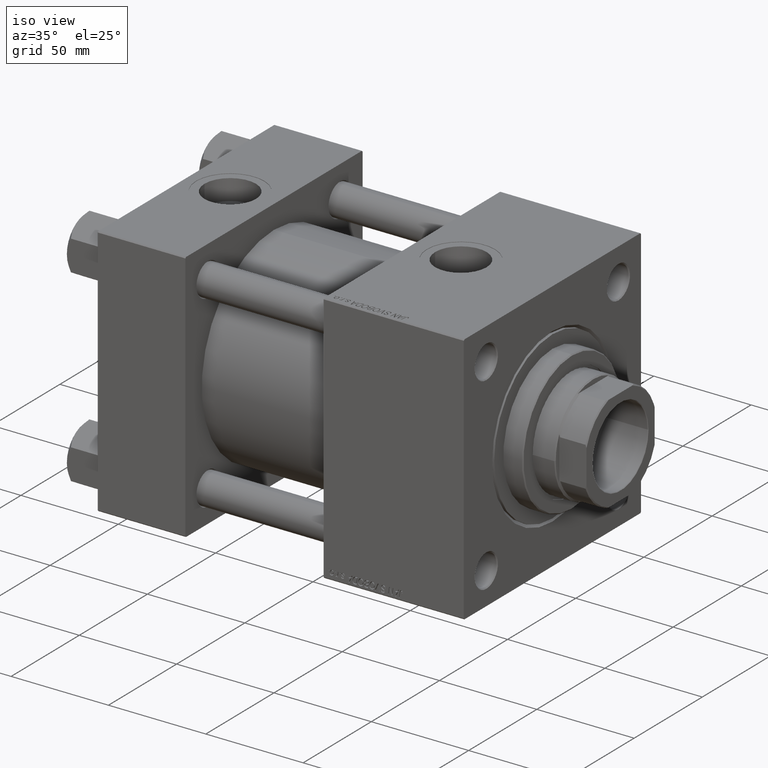
[diagram: clean part render]
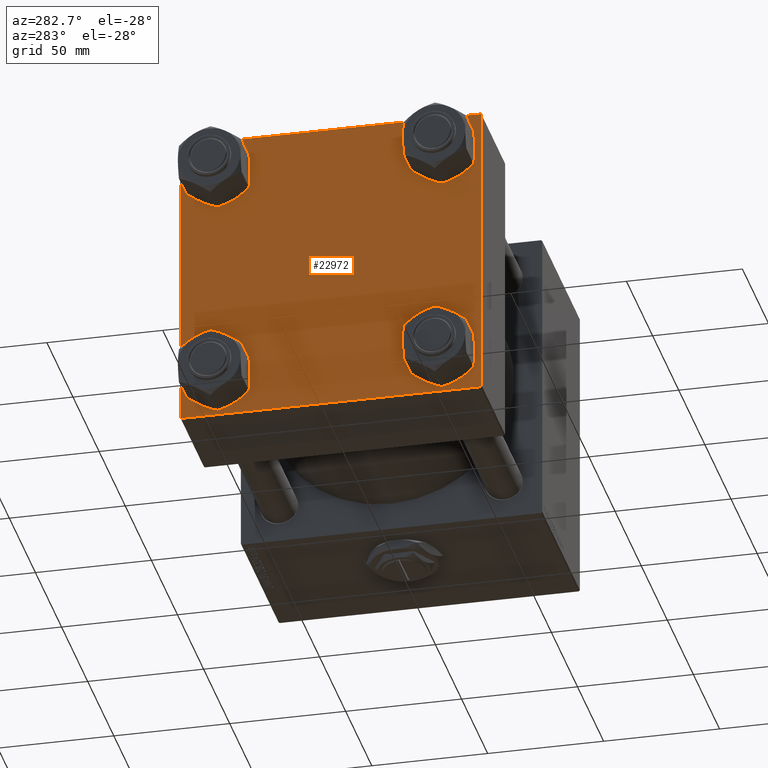
[diagram: tour spotlight — one face highlighted and labeled with its STEP entity id]
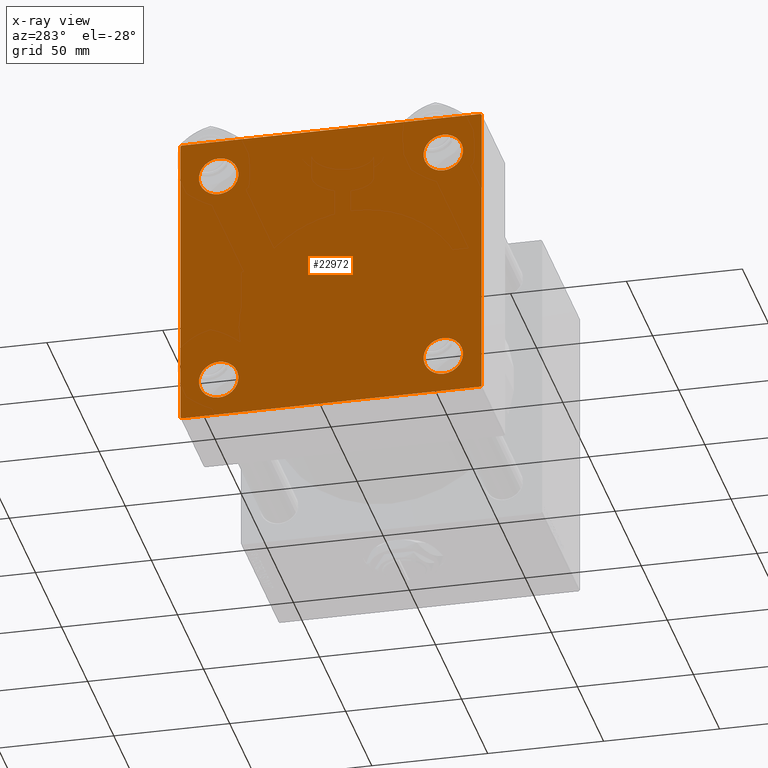
[diagram: x-ray of the same camera — body ghosted, this tour face saturated]
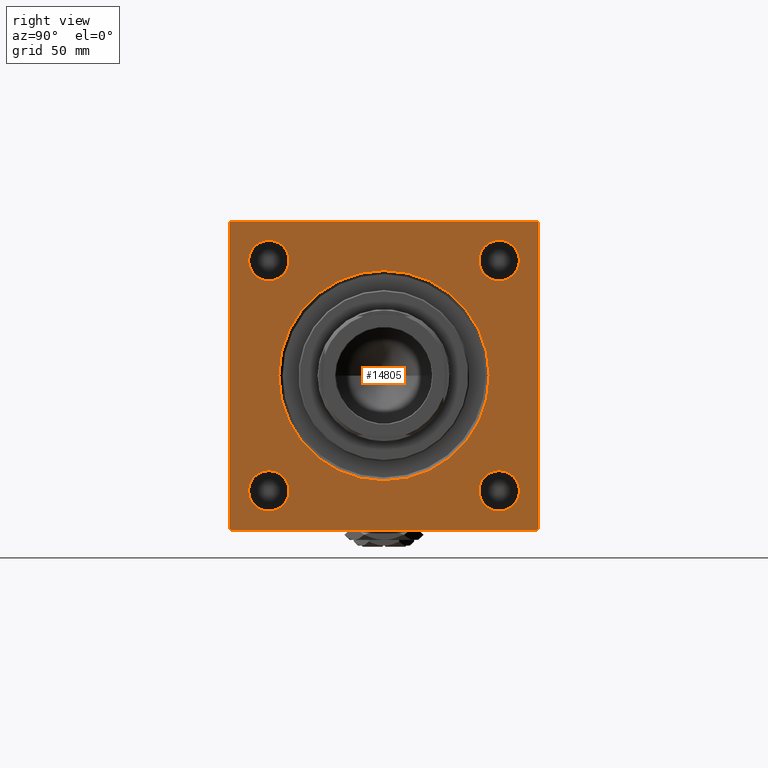
[diagram: tour spotlight — one face highlighted and labeled with its STEP entity id]
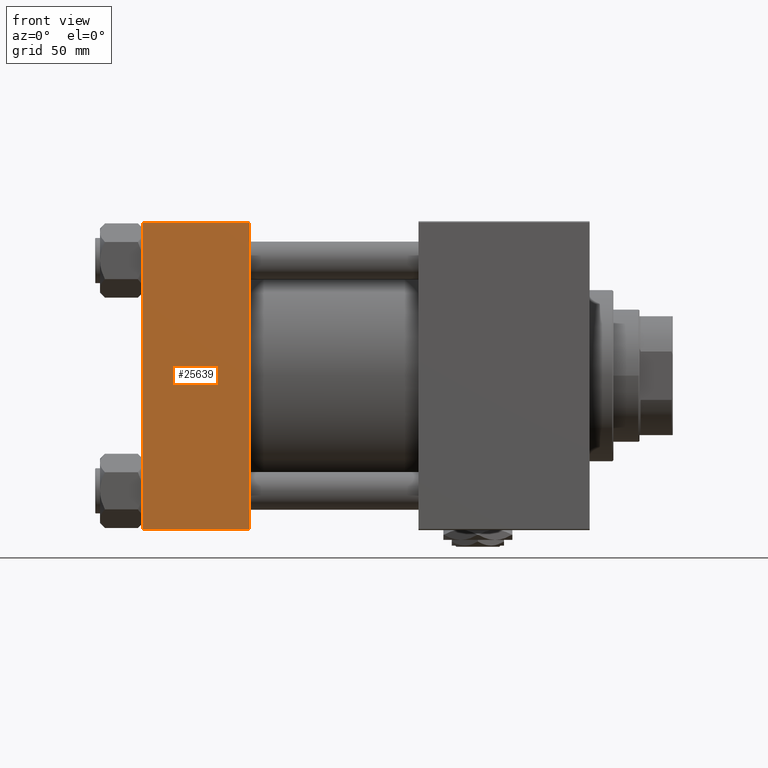
[diagram: tour spotlight — one face highlighted and labeled with its STEP entity id]
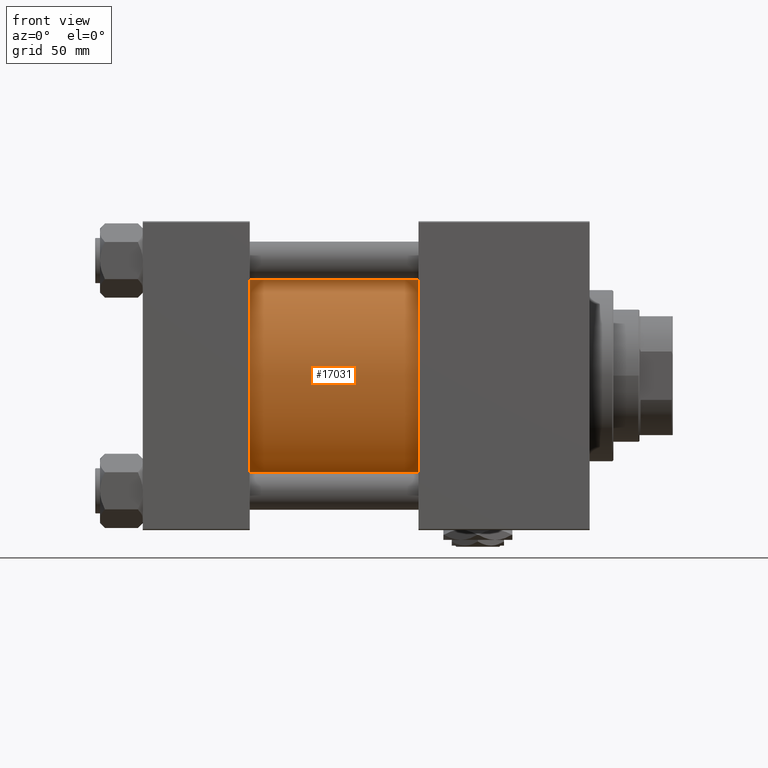
[diagram: tour spotlight — one face highlighted and labeled with its STEP entity id]
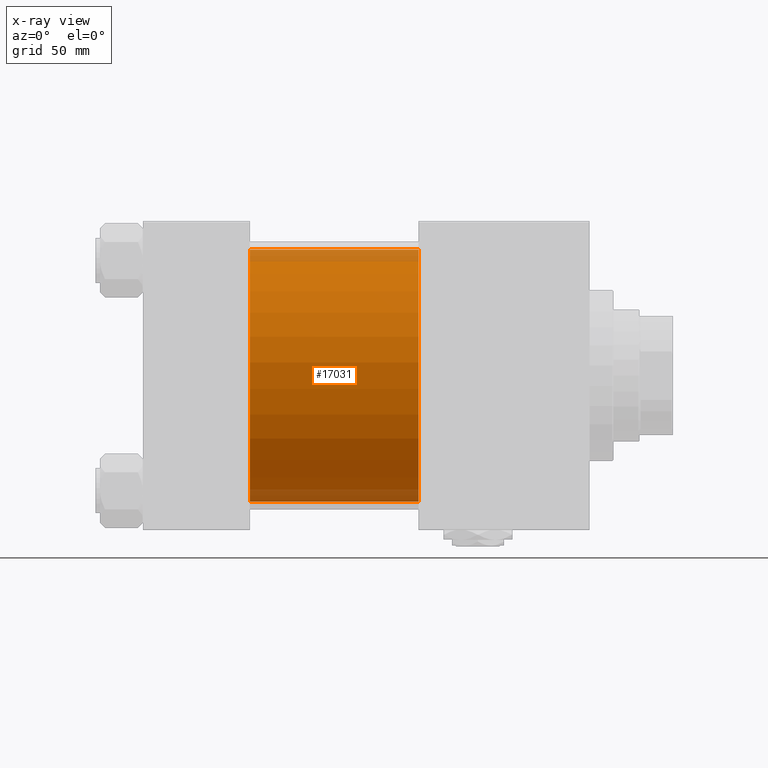
[diagram: x-ray of the same camera — body ghosted, this tour face saturated]
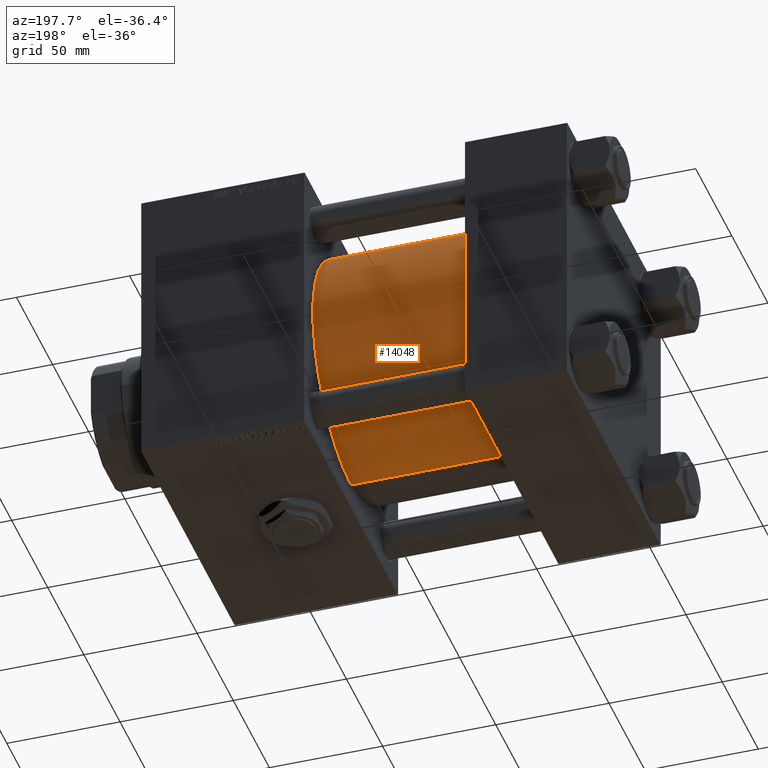
[diagram: tour spotlight — one face highlighted and labeled with its STEP entity id]
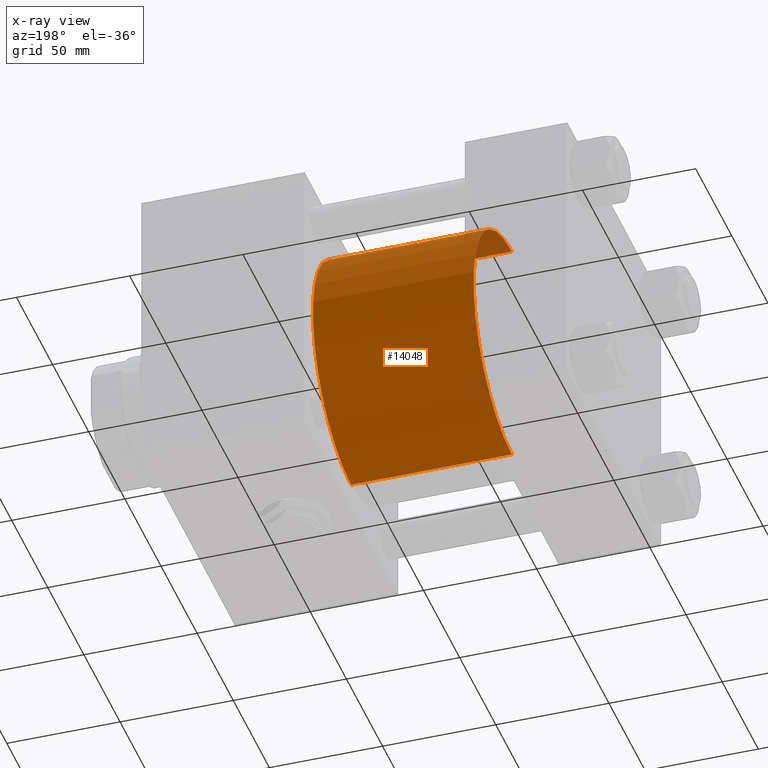
[diagram: x-ray of the same camera — body ghosted, this tour face saturated]
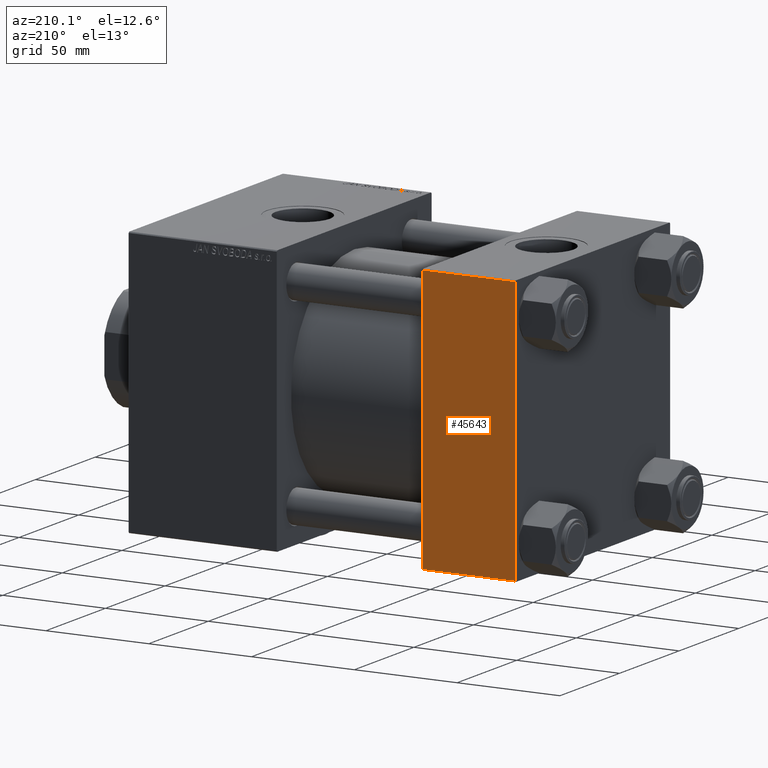
[diagram: tour spotlight — one face highlighted and labeled with its STEP entity id]
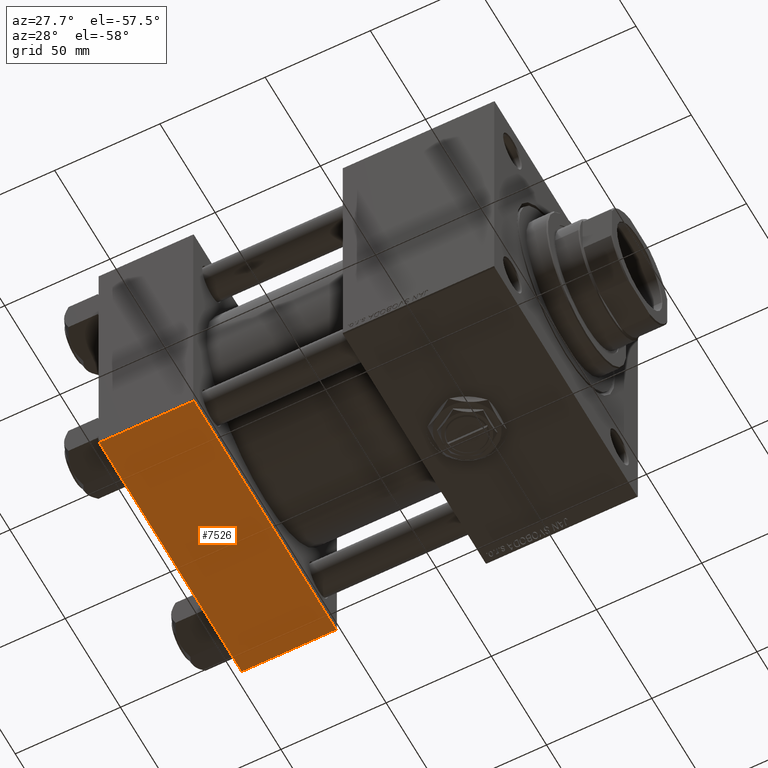
[diagram: tour spotlight — one face highlighted and labeled with its STEP entity id]
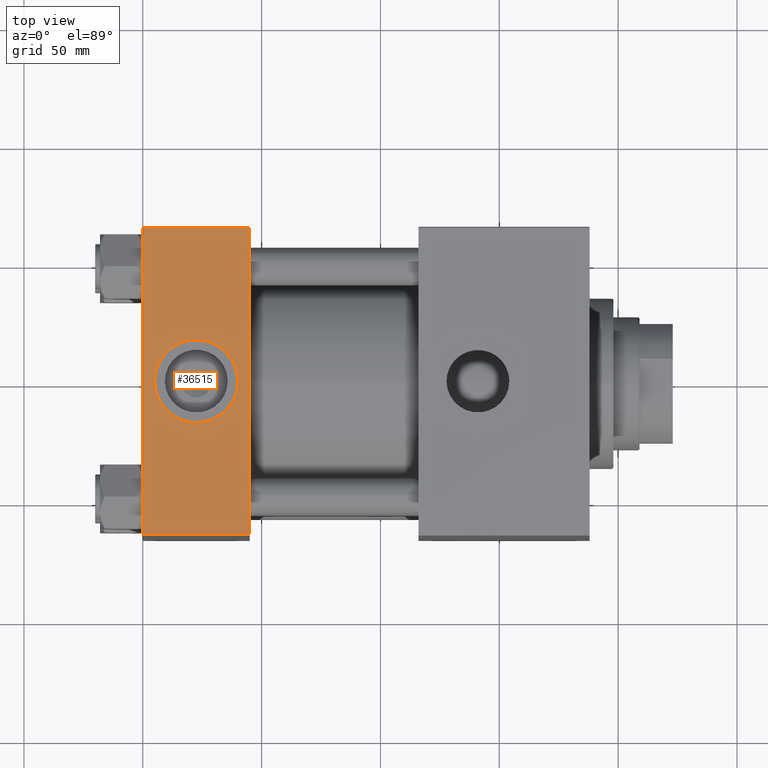
[diagram: tour spotlight — one face highlighted and labeled with its STEP entity id]
A machine part: a face-by-face anatomy tour. The part has 1243 B-rep faces; the first image is the clean iso view, then the 8 largest visible faces are spotlighted one at a time (largest first), each with its STEP entity span.

Face 1 — auxiliary view, entity #22972. An x-ray twin of the same camera follows (body ghosted, this face saturated) — the face is partly hidden behind the body. In plain terms, the highlighted planar face has unit normal (-1, 0, 0).
Definition (entity closure, byte-faithful):
#504 = DIRECTION ( 'NONE',  ( 0.000000000000000000, 0.000000000000000000, 1.000000000000000000 ) ) ;
#526 = AXIS2_PLACEMENT_3D ( 'NONE', #46138, #9826, #32904 ) ;
#538 = EDGE_CURVE ( 'NONE', #18591, #15227, #41202, .T. ) ;
#1169 = FACE_OUTER_BOUND ( 'NONE', #39485, .T. ) ;
#1407 = CIRCLE ( 'NONE', #8163, 8.500000000000007105 ) ;
#2141 = EDGE_CURVE ( 'NONE', #43737, #16187, #39679, .T. ) ;
#2271 = LINE ( 'NONE', #34649, #48018 ) ;
#2372 = EDGE_CURVE ( 'NONE', #24276, #42657, #42554, .T. ) ;
#2485 = AXIS2_PLACEMENT_3D ( 'NONE', #3496, #31116, #39069 ) ;
#2833 = DIRECTION ( 'NONE',  ( 0.000000000000000000, 0.7071067811865474617, -0.7071067811865474617 ) ) ;
#2915 = VECTOR ( 'NONE', #30229, 1000.000000000000000 ) ;
#3126 = LINE ( 'NONE', #27547, #36342 ) ;
#3214 = CARTESIAN_POINT ( 'NONE',  ( 0.000000000000000000, 65.00000000000000000, -64.99999999999998579 ) ) ;
#3496 = CARTESIAN_POINT ( 'NONE',  ( 0.000000000000000000, -48.44999999999999574, -48.45000000000003126 ) ) ;
#4026 = CIRCLE ( 'NONE', #31993, 8.500000000000007105 ) ;
#5039 = CIRCLE ( 'NONE', #2485, 8.500000000000007105 ) ;
#6131 = ORIENTED_EDGE ( 'NONE', *, *, #28336, .T. ) ;
#7970 = DIRECTION ( 'NONE',  ( 0.000000000000000000, 0.000000000000000000, 1.000000000000000000 ) ) ;
#8163 = AXIS2_PLACEMENT_3D ( 'NONE', #44288, #19671, #11970 ) ;
#9111 = AXIS2_PLACEMENT_3D ( 'NONE', #40937, #36962, #37247 ) ;
#9136 = FACE_BOUND ( 'NONE', #33559, .T. ) ;
#9409 = VERTEX_POINT ( 'NONE', #43368 ) ;
#9826 = DIRECTION ( 'NONE',  ( 1.000000000000000000, -0.000000000000000000, 0.000000000000000000 ) ) ;
#10426 = CARTESIAN_POINT ( 'NONE',  ( 0.000000000000000000, 65.00000000000000000, 64.49999999999998579 ) ) ;
#10799 = DIRECTION ( 'NONE',  ( 0.000000000000000000, -0.7071067811865279218, 0.7071067811865671127 ) ) ;
#11970 = DIRECTION ( 'NONE',  ( 0.000000000000000000, 0.000000000000000000, 1.000000000000000000 ) ) ;
#12424 = DIRECTION ( 'NONE',  ( 0.000000000000000000, 0.000000000000000000, 1.000000000000000000 ) ) ;
#13126 = FACE_BOUND ( 'NONE', #35156, .T. ) ;
#13337 = CIRCLE ( 'NONE', #9111, 8.500000000000007105 ) ;
#14064 = LINE ( 'NONE', #41389, #2915 ) ;
#14332 = CARTESIAN_POINT ( 'NONE',  ( 0.000000000000000000, -64.49999999999994316, -65.00000000000000000 ) ) ;
#14613 = VERTEX_POINT ( 'NONE', #43569 ) ;
#15227 = VERTEX_POINT ( 'NONE', #16153 ) ;
#15869 = ORIENTED_EDGE ( 'NONE', *, *, #47072, .F. ) ;
#16153 = CARTESIAN_POINT ( 'NONE',  ( 0.000000000000000000, 48.45000000000000995, -56.95000000000002416 ) ) ;
#16187 = VERTEX_POINT ( 'NONE', #35952 ) ;
#16232 = ORIENTED_EDGE ( 'NONE', *, *, #51817, .T. ) ;
#17402 = DIRECTION ( 'NONE',  ( 0.000000000000000000, 0.000000000000000000, -1.000000000000000000 ) ) ;
#17619 = VERTEX_POINT ( 'NONE', #50238 ) ;
#18246 = EDGE_LOOP ( 'NONE', ( #30526, #45638 ) ) ;
#18591 = VERTEX_POINT ( 'NONE', #39158 ) ;
#19671 = DIRECTION ( 'NONE',  ( 1.000000000000000000, -0.000000000000000000, 0.000000000000000000 ) ) ;
#20022 = ORIENTED_EDGE ( 'NONE', *, *, #28458, .T. ) ;
#20926 = CARTESIAN_POINT ( 'NONE',  ( 0.000000000000000000, -48.44999999999999574, -39.95000000000001705 ) ) ;
#20956 = DIRECTION ( 'NONE',  ( 1.000000000000000000, -0.000000000000000000, 0.000000000000000000 ) ) ;
#21856 = VERTEX_POINT ( 'NONE', #37575 ) ;
#22404 = EDGE_CURVE ( 'NONE', #45590, #33356, #25920, .T. ) ;
#22630 = VECTOR ( 'NONE', #17402, 1000.000000000000000 ) ;
#22972 = ADVANCED_FACE ( 'NONE', ( #49443, #9136, #37779, #13126, #1169 ), #25060, .T. ) ;
#23357 = EDGE_CURVE ( 'NONE', #9409, #43737, #26592, .T. ) ;
#23498 = EDGE_CURVE ( 'NONE', #17619, #14613, #52045, .T. ) ;
#24276 = VERTEX_POINT ( 'NONE', #10426 ) ;
#24931 = ORIENTED_EDGE ( 'NONE', *, *, #34745, .F. ) ;
#25060 = PLANE ( 'NONE',  #45360 ) ;
#25409 = ORIENTED_EDGE ( 'NONE', *, *, #2372, .T. ) ;
#25418 = ORIENTED_EDGE ( 'NONE', *, *, #2141, .T. ) ;
#25560 = CARTESIAN_POINT ( 'NONE',  ( 0.000000000000000000, -64.49999999999997158, 65.00000000000000000 ) ) ;
#25595 = VERTEX_POINT ( 'NONE', #43868 ) ;
#25920 = CIRCLE ( 'NONE', #48753, 8.500000000000007105 ) ;
#26592 = LINE ( 'NONE', #3214, #37769 ) ;
#27547 = CARTESIAN_POINT ( 'NONE',  ( 0.000000000000000000, 65.00000000000000000, 65.00000000000001421 ) ) ;
#27634 = DIRECTION ( 'NONE',  ( 0.000000000000000000, -1.000000000000000000, -1.067522139062650425E-16 ) ) ;
#28336 = EDGE_CURVE ( 'NONE', #14613, #17619, #1407, .T. ) ;
#28458 = EDGE_CURVE ( 'NONE', #33356, #45590, #48825, .T. ) ;
#29812 = CARTESIAN_POINT ( 'NONE',  ( 0.000000000000000000, 48.45000000000000995, 56.95000000000002416 ) ) ;
#29855 = CARTESIAN_POINT ( 'NONE',  ( 0.000000000000000000, 64.74999999999997158, -64.74999999999997158 ) ) ;
#30104 = LINE ( 'NONE', #29855, #38716 ) ;
#30229 = DIRECTION ( 'NONE',  ( -0.000000000000000000, 0.7071067811865672237, 0.7071067811865279218 ) ) ;
#30526 = ORIENTED_EDGE ( 'NONE', *, *, #538, .T. ) ;
#30645 = EDGE_CURVE ( 'NONE', #15227, #18591, #4026, .T. ) ;
#31116 = DIRECTION ( 'NONE',  ( 1.000000000000000000, -0.000000000000000000, 0.000000000000000000 ) ) ;
#31349 = DIRECTION ( 'NONE',  ( 1.000000000000000000, -0.000000000000000000, 0.000000000000000000 ) ) ;
#31466 = CARTESIAN_POINT ( 'NONE',  ( 0.000000000000000000, -64.75000000000176215, -64.74999999999816680 ) ) ;
#31612 = ORIENTED_EDGE ( 'NONE', *, *, #23498, .T. ) ;
#31749 = LINE ( 'NONE', #47912, #44666 ) ;
#31993 = AXIS2_PLACEMENT_3D ( 'NONE', #50542, #42075, #33343 ) ;
#32229 = ORIENTED_EDGE ( 'NONE', *, *, #23357, .T. ) ;
#32904 = DIRECTION ( 'NONE',  ( 0.000000000000000000, 0.000000000000000000, 1.000000000000000000 ) ) ;
#33343 = DIRECTION ( 'NONE',  ( 0.000000000000000000, 0.000000000000000000, 1.000000000000000000 ) ) ;
#33356 = VERTEX_POINT ( 'NONE', #29812 ) ;
#33559 = EDGE_LOOP ( 'NONE', ( #36839, #35777 ) ) ;
#34649 = CARTESIAN_POINT ( 'NONE',  ( 0.000000000000000000, -65.00000000000000000, 65.00000000000000000 ) ) ;
#34745 = EDGE_CURVE ( 'NONE', #21856, #43350, #3126, .T. ) ;
#35156 = EDGE_LOOP ( 'NONE', ( #20022, #49294 ) ) ;
#35777 = ORIENTED_EDGE ( 'NONE', *, *, #38872, .T. ) ;
#35952 = CARTESIAN_POINT ( 'NONE',  ( 0.000000000000000000, -65.00000000000000000, -64.49999999999991473 ) ) ;
#36150 = CARTESIAN_POINT ( 'NONE',  ( 0.000000000000000000, -65.00000000000000000, 64.50000000000000000 ) ) ;
#36342 = VECTOR ( 'NONE', #47686, 1000.000000000000000 ) ;
#36369 = DIRECTION ( 'NONE',  ( 1.000000000000000000, -0.000000000000000000, 0.000000000000000000 ) ) ;
#36769 = ORIENTED_EDGE ( 'NONE', *, *, #40879, .T. ) ;
#36839 = ORIENTED_EDGE ( 'NONE', *, *, #51013, .T. ) ;
#36962 = DIRECTION ( 'NONE',  ( 1.000000000000000000, -0.000000000000000000, 0.000000000000000000 ) ) ;
#37247 = DIRECTION ( 'NONE',  ( 0.000000000000000000, 0.000000000000000000, 1.000000000000000000 ) ) ;
#37575 = CARTESIAN_POINT ( 'NONE',  ( 0.000000000000000000, 64.49999999999997158, 65.00000000000001421 ) ) ;
#37769 = VECTOR ( 'NONE', #27634, 1000.000000000000000 ) ;
#37779 = FACE_BOUND ( 'NONE', #18246, .T. ) ;
#37849 = AXIS2_PLACEMENT_3D ( 'NONE', #51485, #31349, #12424 ) ;
#38320 = CARTESIAN_POINT ( 'NONE',  ( 0.000000000000000000, 65.00000000000000000, 65.00000000000001421 ) ) ;
#38340 = EDGE_LOOP ( 'NONE', ( #6131, #31612 ) ) ;
#38716 = VECTOR ( 'NONE', #46267, 1000.000000000000114 ) ;
#38872 = EDGE_CURVE ( 'NONE', #25595, #41923, #5039, .T. ) ;
#39069 = DIRECTION ( 'NONE',  ( 0.000000000000000000, 0.000000000000000000, 1.000000000000000000 ) ) ;
#39158 = CARTESIAN_POINT ( 'NONE',  ( 0.000000000000000000, 48.45000000000000995, -39.95000000000000284 ) ) ;
#39485 = EDGE_LOOP ( 'NONE', ( #25409, #43520, #32229, #25418, #15869, #36769, #24931, #16232 ) ) ;
#39679 = LINE ( 'NONE', #31466, #48838 ) ;
#40036 = CARTESIAN_POINT ( 'NONE',  ( 0.000000000000000000, 48.45000000000000995, 48.45000000000001705 ) ) ;
#40334 = CARTESIAN_POINT ( 'NONE',  ( 0.000000000000000000, -48.44999999999999574, 48.45000000000003126 ) ) ;
#40879 = EDGE_CURVE ( 'NONE', #44352, #43350, #14064, .T. ) ;
#40937 = CARTESIAN_POINT ( 'NONE',  ( 0.000000000000000000, -48.44999999999999574, -48.45000000000003126 ) ) ;
#40954 = DIRECTION ( 'NONE',  ( -0.000000000000000000, 0.000000000000000000, 1.000000000000000000 ) ) ;
#41202 = CIRCLE ( 'NONE', #37849, 8.500000000000007105 ) ;
#41389 = CARTESIAN_POINT ( 'NONE',  ( -0.000000000000000000, -64.74999999999819522, 64.75000000000179057 ) ) ;
#41755 = DIRECTION ( 'NONE',  ( -1.000000000000000000, 0.000000000000000000, -0.000000000000000000 ) ) ;
#41923 = VERTEX_POINT ( 'NONE', #20926 ) ;
#42075 = DIRECTION ( 'NONE',  ( 1.000000000000000000, -0.000000000000000000, 0.000000000000000000 ) ) ;
#42554 = LINE ( 'NONE', #38320, #22630 ) ;
#42657 = VERTEX_POINT ( 'NONE', #48005 ) ;
#43350 = VERTEX_POINT ( 'NONE', #25560 ) ;
#43368 = CARTESIAN_POINT ( 'NONE',  ( 0.000000000000000000, 64.49999999999997158, -64.99999999999998579 ) ) ;
#43520 = ORIENTED_EDGE ( 'NONE', *, *, #50312, .T. ) ;
#43569 = CARTESIAN_POINT ( 'NONE',  ( 0.000000000000000000, -48.44999999999999574, 56.95000000000003837 ) ) ;
#43737 = VERTEX_POINT ( 'NONE', #14332 ) ;
#43868 = CARTESIAN_POINT ( 'NONE',  ( 0.000000000000000000, -48.44999999999999574, -56.95000000000003837 ) ) ;
#44288 = CARTESIAN_POINT ( 'NONE',  ( 0.000000000000000000, -48.44999999999999574, 48.45000000000003126 ) ) ;
#44352 = VERTEX_POINT ( 'NONE', #36150 ) ;
#44666 = VECTOR ( 'NONE', #2833, 1000.000000000000114 ) ;
#45271 = AXIS2_PLACEMENT_3D ( 'NONE', #40334, #36369, #7970 ) ;
#45360 = AXIS2_PLACEMENT_3D ( 'NONE', #45729, #41755, #40954 ) ;
#45590 = VERTEX_POINT ( 'NONE', #51728 ) ;
#45638 = ORIENTED_EDGE ( 'NONE', *, *, #30645, .T. ) ;
#45729 = CARTESIAN_POINT ( 'NONE',  ( 0.000000000000000000, 0.000000000000000000, 0.000000000000000000 ) ) ;
#46138 = CARTESIAN_POINT ( 'NONE',  ( 0.000000000000000000, 48.45000000000000995, 48.45000000000001705 ) ) ;
#46267 = DIRECTION ( 'NONE',  ( -0.000000000000000000, -0.7071067811865474617, -0.7071067811865474617 ) ) ;
#46835 = DIRECTION ( 'NONE',  ( 0.000000000000000000, 0.000000000000000000, -1.000000000000000000 ) ) ;
#47072 = EDGE_CURVE ( 'NONE', #44352, #16187, #2271, .T. ) ;
#47686 = DIRECTION ( 'NONE',  ( 0.000000000000000000, -1.000000000000000000, -1.067522139062650425E-16 ) ) ;
#47912 = CARTESIAN_POINT ( 'NONE',  ( 0.000000000000000000, 64.74999999999998579, 64.74999999999998579 ) ) ;
#48005 = CARTESIAN_POINT ( 'NONE',  ( 0.000000000000000000, 65.00000000000000000, -64.49999999999995737 ) ) ;
#48018 = VECTOR ( 'NONE', #46835, 1000.000000000000000 ) ;
#48753 = AXIS2_PLACEMENT_3D ( 'NONE', #40036, #20956, #504 ) ;
#48825 = CIRCLE ( 'NONE', #526, 8.500000000000007105 ) ;
#48838 = VECTOR ( 'NONE', #10799, 1000.000000000000000 ) ;
#49294 = ORIENTED_EDGE ( 'NONE', *, *, #22404, .T. ) ;
#49443 = FACE_BOUND ( 'NONE', #38340, .T. ) ;
#50238 = CARTESIAN_POINT ( 'NONE',  ( 0.000000000000000000, -48.44999999999999574, 39.95000000000001705 ) ) ;
#50312 = EDGE_CURVE ( 'NONE', #42657, #9409, #30104, .T. ) ;
#50542 = CARTESIAN_POINT ( 'NONE',  ( 0.000000000000000000, 48.45000000000000995, -48.45000000000001705 ) ) ;
#51013 = EDGE_CURVE ( 'NONE', #41923, #25595, #13337, .T. ) ;
#51485 = CARTESIAN_POINT ( 'NONE',  ( 0.000000000000000000, 48.45000000000000995, -48.45000000000001705 ) ) ;
#51728 = CARTESIAN_POINT ( 'NONE',  ( 0.000000000000000000, 48.45000000000000995, 39.95000000000000284 ) ) ;
#51817 = EDGE_CURVE ( 'NONE', #21856, #24276, #31749, .T. ) ;
#52045 = CIRCLE ( 'NONE', #45271, 8.500000000000007105 ) ;

Face 2 — right view, entity #14805. In plain terms, the highlighted planar face has unit normal (-1, 0, 0).
Definition (entity closure, byte-faithful):
#56 = DIRECTION ( 'NONE',  ( 0.000000000000000000, 0.000000000000000000, -1.000000000000000000 ) ) ;
#653 = VERTEX_POINT ( 'NONE', #21700 ) ;
#997 = AXIS2_PLACEMENT_3D ( 'NONE', #20749, #52293, #49116 ) ;
#1081 = AXIS2_PLACEMENT_3D ( 'NONE', #17591, #22587, #30029 ) ;
#1440 = CARTESIAN_POINT ( 'NONE',  ( 188.0000000000000000, -64.99999999999998579, 65.00000000000000000 ) ) ;
#1705 = CARTESIAN_POINT ( 'NONE',  ( 188.0000000000000000, -64.99999999999998579, 64.50000000000008527 ) ) ;
#1803 = VECTOR ( 'NONE', #40415, 1000.000000000000000 ) ;
#1990 = CARTESIAN_POINT ( 'NONE',  ( 188.0000000000000000, 65.00000000000002842, -64.50000000000001421 ) ) ;
#2197 = AXIS2_PLACEMENT_3D ( 'NONE', #37372, #13510, #24903 ) ;
#2883 = DIRECTION ( 'NONE',  ( 0.000000000000000000, 0.000000000000000000, 1.000000000000000000 ) ) ;
#3027 = CARTESIAN_POINT ( 'NONE',  ( 188.0000000000000000, 0.000000000000000000, -44.24999999999998579 ) ) ;
#3563 = EDGE_LOOP ( 'NONE', ( #50070, #4885 ) ) ;
#3804 = CARTESIAN_POINT ( 'NONE',  ( 188.0000000000000000, -64.50000000000002842, -65.00000000000001421 ) ) ;
#3893 = CARTESIAN_POINT ( 'NONE',  ( 188.0000000000000000, 64.50000000000005684, 65.00000000000001421 ) ) ;
#4494 = CARTESIAN_POINT ( 'NONE',  ( 188.0000000000000000, 48.45000000000000995, 48.45000000000001705 ) ) ;
#4702 = VERTEX_POINT ( 'NONE', #24753 ) ;
#4885 = ORIENTED_EDGE ( 'NONE', *, *, #18775, .T. ) ;
#5162 = LINE ( 'NONE', #1440, #27397 ) ;
#5240 = CARTESIAN_POINT ( 'NONE',  ( 188.0000000000000000, 65.00000000000002842, -64.99999999999998579 ) ) ;
#6749 = LINE ( 'NONE', #47054, #20785 ) ;
#7220 = ORIENTED_EDGE ( 'NONE', *, *, #17722, .F. ) ;
#7411 = CARTESIAN_POINT ( 'NONE',  ( 188.0000000000000000, -64.99999999999998579, -64.50000000000002842 ) ) ;
#8581 = LINE ( 'NONE', #3804, #1803 ) ;
#8762 = ORIENTED_EDGE ( 'NONE', *, *, #42339, .T. ) ;
#9156 = CIRCLE ( 'NONE', #38794, 44.24999999999998579 ) ;
#9286 = EDGE_CURVE ( 'NONE', #4702, #653, #29558, .T. ) ;
#9681 = CIRCLE ( 'NONE', #39306, 44.24999999999998579 ) ;
#9853 = AXIS2_PLACEMENT_3D ( 'NONE', #46413, #26282, #2883 ) ;
#10036 = CARTESIAN_POINT ( 'NONE',  ( 188.0000000000000000, 48.45000000000000995, -39.95000000000008811 ) ) ;
#10397 = FACE_BOUND ( 'NONE', #26528, .T. ) ;
#10454 = CARTESIAN_POINT ( 'NONE',  ( 188.0000000000000000, 65.00000000000002842, -64.50000000000001421 ) ) ;
#11632 = CARTESIAN_POINT ( 'NONE',  ( 188.0000000000000000, 0.000000000000000000, 0.000000000000000000 ) ) ;
#12035 = ORIENTED_EDGE ( 'NONE', *, *, #13767, .T. ) ;
#12390 = VECTOR ( 'NONE', #50490, 999.9999999999998863 ) ;
#12470 = EDGE_CURVE ( 'NONE', #29446, #36134, #8581, .T. ) ;
#12573 = CARTESIAN_POINT ( 'NONE',  ( 188.0000000000000000, -64.50000000000008527, 65.00000000000000000 ) ) ;
#12876 = DIRECTION ( 'NONE',  ( -1.000000000000000000, 0.000000000000000000, -0.000000000000000000 ) ) ;
#13510 = DIRECTION ( 'NONE',  ( -1.000000000000000000, 0.000000000000000000, -0.000000000000000000 ) ) ;
#13767 = EDGE_CURVE ( 'NONE', #23477, #17051, #23025, .T. ) ;
#14750 = DIRECTION ( 'NONE',  ( -1.000000000000000000, 0.000000000000000000, -0.000000000000000000 ) ) ;
#14801 = CARTESIAN_POINT ( 'NONE',  ( 188.0000000000000000, 48.45000000000000995, 48.45000000000001705 ) ) ;
#14805 = ADVANCED_FACE ( 'NONE', ( #42997, #46966, #10397, #18107, #26320, #21822 ), #37990, .F. ) ;
#15366 = VERTEX_POINT ( 'NONE', #31464 ) ;
#15803 = VERTEX_POINT ( 'NONE', #16474 ) ;
#15939 = CIRCLE ( 'NONE', #48098, 8.499999999999923617 ) ;
#16116 = CIRCLE ( 'NONE', #48260, 8.499999999999923617 ) ;
#16461 = DIRECTION ( 'NONE',  ( 0.000000000000000000, 0.000000000000000000, 1.000000000000000000 ) ) ;
#16474 = CARTESIAN_POINT ( 'NONE',  ( 188.0000000000000000, -64.99999999999998579, 64.50000000000008527 ) ) ;
#16583 = DIRECTION ( 'NONE',  ( -1.000000000000000000, 0.000000000000000000, -0.000000000000000000 ) ) ;
#17051 = VERTEX_POINT ( 'NONE', #10036 ) ;
#17394 = ORIENTED_EDGE ( 'NONE', *, *, #17503, .T. ) ;
#17503 = EDGE_CURVE ( 'NONE', #15366, #36717, #39268, .T. ) ;
#17569 = EDGE_CURVE ( 'NONE', #15803, #29446, #5162, .T. ) ;
#17586 = VECTOR ( 'NONE', #32811, 1000.000000000000000 ) ;
#17591 = CARTESIAN_POINT ( 'NONE',  ( 188.0000000000000000, 0.000000000000000000, 0.000000000000000000 ) ) ;
#17722 = EDGE_CURVE ( 'NONE', #32064, #45968, #50758, .T. ) ;
#18107 = FACE_BOUND ( 'NONE', #35072, .T. ) ;
#18380 = DIRECTION ( 'NONE',  ( -1.000000000000000000, 0.000000000000000000, -0.000000000000000000 ) ) ;
#18775 = EDGE_CURVE ( 'NONE', #19920, #25490, #9681, .T. ) ;
#19821 = CARTESIAN_POINT ( 'NONE',  ( 188.0000000000000000, 64.50000000000002842, -64.99999999999998579 ) ) ;
#19920 = VERTEX_POINT ( 'NONE', #46015 ) ;
#20019 = CIRCLE ( 'NONE', #9853, 8.499999999999923617 ) ;
#20749 = CARTESIAN_POINT ( 'NONE',  ( 188.0000000000000000, 48.45000000000000995, -48.45000000000001705 ) ) ;
#20785 = VECTOR ( 'NONE', #22962, 1000.000000000000000 ) ;
#20915 = LINE ( 'NONE', #5240, #22638 ) ;
#21101 = CARTESIAN_POINT ( 'NONE',  ( 188.0000000000000000, -48.45000000000001705, -48.45000000000001705 ) ) ;
#21368 = DIRECTION ( 'NONE',  ( 0.000000000000000000, 0.000000000000000000, -1.000000000000000000 ) ) ;
#21447 = DIRECTION ( 'NONE',  ( 0.000000000000000000, -1.000000000000000000, -2.135044278125300850E-16 ) ) ;
#21700 = CARTESIAN_POINT ( 'NONE',  ( 188.0000000000000000, -48.45000000000001705, -56.94999999999993889 ) ) ;
#21822 = FACE_OUTER_BOUND ( 'NONE', #23641, .T. ) ;
#22343 = CARTESIAN_POINT ( 'NONE',  ( 188.0000000000000000, 0.000000000000000000, 0.000000000000000000 ) ) ;
#22587 = DIRECTION ( 'NONE',  ( -1.000000000000000000, 0.000000000000000000, -0.000000000000000000 ) ) ;
#22638 = VECTOR ( 'NONE', #21447, 1000.000000000000000 ) ;
#22962 = DIRECTION ( 'NONE',  ( 0.000000000000000000, -0.7071067811865279218, 0.7071067811865671127 ) ) ;
#23025 = CIRCLE ( 'NONE', #997, 8.499999999999923617 ) ;
#23477 = VERTEX_POINT ( 'NONE', #32384 ) ;
#23641 = EDGE_LOOP ( 'NONE', ( #25533, #28777, #30865, #37187, #7220, #8762, #34313, #40178 ) ) ;
#24100 = EDGE_CURVE ( 'NONE', #36587, #40115, #44426, .T. ) ;
#24753 = CARTESIAN_POINT ( 'NONE',  ( 188.0000000000000000, -48.45000000000001705, -39.95000000000008811 ) ) ;
#24903 = DIRECTION ( 'NONE',  ( 0.000000000000000000, 0.000000000000000000, 1.000000000000000000 ) ) ;
#25105 = CIRCLE ( 'NONE', #2197, 8.499999999999923617 ) ;
#25341 = VERTEX_POINT ( 'NONE', #19821 ) ;
#25490 = VERTEX_POINT ( 'NONE', #3027 ) ;
#25518 = CARTESIAN_POINT ( 'NONE',  ( 188.0000000000000000, -48.44999999999998153, 56.94999999999991047 ) ) ;
#25533 = ORIENTED_EDGE ( 'NONE', *, *, #17569, .T. ) ;
#26115 = DIRECTION ( 'NONE',  ( 0.000000000000000000, 0.000000000000000000, 1.000000000000000000 ) ) ;
#26282 = DIRECTION ( 'NONE',  ( -1.000000000000000000, 0.000000000000000000, -0.000000000000000000 ) ) ;
#26320 = FACE_BOUND ( 'NONE', #3563, .T. ) ;
#26420 = CARTESIAN_POINT ( 'NONE',  ( 188.0000000000000000, -48.45000000000001705, -48.45000000000001705 ) ) ;
#26528 = EDGE_LOOP ( 'NONE', ( #28860, #36903 ) ) ;
#26746 = EDGE_CURVE ( 'NONE', #36377, #15803, #46245, .T. ) ;
#27287 = EDGE_LOOP ( 'NONE', ( #17394, #35982 ) ) ;
#27397 = VECTOR ( 'NONE', #21368, 1000.000000000000000 ) ;
#28056 = CARTESIAN_POINT ( 'NONE',  ( 188.0000000000000000, 65.00000000000002842, 65.00000000000001421 ) ) ;
#28777 = ORIENTED_EDGE ( 'NONE', *, *, #12470, .T. ) ;
#28860 = ORIENTED_EDGE ( 'NONE', *, *, #48322, .T. ) ;
#29446 = VERTEX_POINT ( 'NONE', #7411 ) ;
#29558 = CIRCLE ( 'NONE', #33805, 8.499999999999923617 ) ;
#29908 = EDGE_CURVE ( 'NONE', #25341, #45968, #43367, .T. ) ;
#29937 = AXIS2_PLACEMENT_3D ( 'NONE', #37530, #16583, #33286 ) ;
#30029 = DIRECTION ( 'NONE',  ( -0.000000000000000000, 0.000000000000000000, 1.000000000000000000 ) ) ;
#30263 = VECTOR ( 'NONE', #34630, 1000.000000000000000 ) ;
#30819 = DIRECTION ( 'NONE',  ( 0.000000000000000000, 0.000000000000000000, 1.000000000000000000 ) ) ;
#30865 = ORIENTED_EDGE ( 'NONE', *, *, #49838, .F. ) ;
#31464 = CARTESIAN_POINT ( 'NONE',  ( 188.0000000000000000, -48.44999999999998153, 39.95000000000005969 ) ) ;
#32064 = VERTEX_POINT ( 'NONE', #40010 ) ;
#32384 = CARTESIAN_POINT ( 'NONE',  ( 188.0000000000000000, 48.45000000000000995, -56.94999999999993889 ) ) ;
#32811 = DIRECTION ( 'NONE',  ( 0.000000000000000000, -1.000000000000000000, -1.067522139062650425E-16 ) ) ;
#33286 = DIRECTION ( 'NONE',  ( 0.000000000000000000, 0.000000000000000000, 1.000000000000000000 ) ) ;
#33454 = CARTESIAN_POINT ( 'NONE',  ( 188.0000000000000000, 48.45000000000000995, 39.95000000000008811 ) ) ;
#33805 = AXIS2_PLACEMENT_3D ( 'NONE', #26420, #14750, #34358 ) ;
#34072 = CARTESIAN_POINT ( 'NONE',  ( 188.0000000000000000, 65.00000000000002842, 65.00000000000001421 ) ) ;
#34313 = ORIENTED_EDGE ( 'NONE', *, *, #46775, .T. ) ;
#34358 = DIRECTION ( 'NONE',  ( 0.000000000000000000, 0.000000000000000000, 1.000000000000000000 ) ) ;
#34630 = DIRECTION ( 'NONE',  ( -0.000000000000000000, 0.7071067811865671127, 0.7071067811865279218 ) ) ;
#35072 = EDGE_LOOP ( 'NONE', ( #12035, #51380 ) ) ;
#35982 = ORIENTED_EDGE ( 'NONE', *, *, #44765, .T. ) ;
#36134 = VERTEX_POINT ( 'NONE', #52071 ) ;
#36377 = VERTEX_POINT ( 'NONE', #12573 ) ;
#36587 = VERTEX_POINT ( 'NONE', #33454 ) ;
#36717 = VERTEX_POINT ( 'NONE', #25518 ) ;
#36903 = ORIENTED_EDGE ( 'NONE', *, *, #9286, .T. ) ;
#37187 = ORIENTED_EDGE ( 'NONE', *, *, #29908, .T. ) ;
#37372 = CARTESIAN_POINT ( 'NONE',  ( 188.0000000000000000, -48.44999999999998153, 48.44999999999998863 ) ) ;
#37530 = CARTESIAN_POINT ( 'NONE',  ( 188.0000000000000000, -48.44999999999998153, 48.44999999999998863 ) ) ;
#37990 = PLANE ( 'NONE',  #1081 ) ;
#38746 = EDGE_LOOP ( 'NONE', ( #46051, #51881 ) ) ;
#38794 = AXIS2_PLACEMENT_3D ( 'NONE', #11632, #39993, #52186 ) ;
#39177 = DIRECTION ( 'NONE',  ( 0.000000000000000000, 0.000000000000000000, 1.000000000000000000 ) ) ;
#39268 = CIRCLE ( 'NONE', #29937, 8.499999999999923617 ) ;
#39306 = AXIS2_PLACEMENT_3D ( 'NONE', #22343, #18380, #30819 ) ;
#39720 = EDGE_CURVE ( 'NONE', #40115, #36587, #16116, .T. ) ;
#39993 = DIRECTION ( 'NONE',  ( -1.000000000000000000, 0.000000000000000000, -0.000000000000000000 ) ) ;
#40010 = CARTESIAN_POINT ( 'NONE',  ( 188.0000000000000000, 65.00000000000002842, 64.50000000000001421 ) ) ;
#40115 = VERTEX_POINT ( 'NONE', #50367 ) ;
#40178 = ORIENTED_EDGE ( 'NONE', *, *, #26746, .T. ) ;
#40415 = DIRECTION ( 'NONE',  ( 0.000000000000000000, 0.7071067811865279218, -0.7071067811865672237 ) ) ;
#40932 = VECTOR ( 'NONE', #56, 1000.000000000000000 ) ;
#42339 = EDGE_CURVE ( 'NONE', #32064, #46814, #6749, .T. ) ;
#42390 = DIRECTION ( 'NONE',  ( -1.000000000000000000, 0.000000000000000000, -0.000000000000000000 ) ) ;
#42997 = FACE_BOUND ( 'NONE', #38746, .T. ) ;
#43367 = LINE ( 'NONE', #1990, #30263 ) ;
#44426 = CIRCLE ( 'NONE', #49529, 8.499999999999923617 ) ;
#44448 = EDGE_CURVE ( 'NONE', #17051, #23477, #20019, .T. ) ;
#44765 = EDGE_CURVE ( 'NONE', #36717, #15366, #25105, .T. ) ;
#45968 = VERTEX_POINT ( 'NONE', #10454 ) ;
#46015 = CARTESIAN_POINT ( 'NONE',  ( 188.0000000000000000, 5.419062086227035828E-15, 44.24999999999998579 ) ) ;
#46051 = ORIENTED_EDGE ( 'NONE', *, *, #24100, .T. ) ;
#46245 = LINE ( 'NONE', #1705, #12390 ) ;
#46413 = CARTESIAN_POINT ( 'NONE',  ( 188.0000000000000000, 48.45000000000000995, -48.45000000000001705 ) ) ;
#46775 = EDGE_CURVE ( 'NONE', #46814, #36377, #48714, .T. ) ;
#46814 = VERTEX_POINT ( 'NONE', #3893 ) ;
#46966 = FACE_BOUND ( 'NONE', #27287, .T. ) ;
#47054 = CARTESIAN_POINT ( 'NONE',  ( 188.0000000000000000, 64.50000000000005684, 65.00000000000001421 ) ) ;
#48098 = AXIS2_PLACEMENT_3D ( 'NONE', #21101, #12876, #26115 ) ;
#48260 = AXIS2_PLACEMENT_3D ( 'NONE', #4494, #48785, #16461 ) ;
#48322 = EDGE_CURVE ( 'NONE', #653, #4702, #15939, .T. ) ;
#48714 = LINE ( 'NONE', #28056, #17586 ) ;
#48785 = DIRECTION ( 'NONE',  ( -1.000000000000000000, 0.000000000000000000, -0.000000000000000000 ) ) ;
#49116 = DIRECTION ( 'NONE',  ( 0.000000000000000000, 0.000000000000000000, 1.000000000000000000 ) ) ;
#49160 = EDGE_CURVE ( 'NONE', #25490, #19920, #9156, .T. ) ;
#49529 = AXIS2_PLACEMENT_3D ( 'NONE', #14801, #42390, #39177 ) ;
#49838 = EDGE_CURVE ( 'NONE', #25341, #36134, #20915, .T. ) ;
#50070 = ORIENTED_EDGE ( 'NONE', *, *, #49160, .T. ) ;
#50367 = CARTESIAN_POINT ( 'NONE',  ( 188.0000000000000000, 48.45000000000000995, 56.94999999999993889 ) ) ;
#50490 = DIRECTION ( 'NONE',  ( -0.000000000000000000, -0.7071067811865376918, -0.7071067811865574537 ) ) ;
#50758 = LINE ( 'NONE', #34072, #40932 ) ;
#51380 = ORIENTED_EDGE ( 'NONE', *, *, #44448, .T. ) ;
#51881 = ORIENTED_EDGE ( 'NONE', *, *, #39720, .T. ) ;
#52071 = CARTESIAN_POINT ( 'NONE',  ( 188.0000000000000000, -64.50000000000002842, -65.00000000000001421 ) ) ;
#52186 = DIRECTION ( 'NONE',  ( 0.000000000000000000, 0.000000000000000000, 1.000000000000000000 ) ) ;
#52293 = DIRECTION ( 'NONE',  ( -1.000000000000000000, 0.000000000000000000, -0.000000000000000000 ) ) ;

Face 3 — front view, entity #25639. In plain terms, the highlighted planar face has unit normal (0, 1, 0).
Definition (entity closure, byte-faithful):
#2143 = AXIS2_PLACEMENT_3D ( 'NONE', #24004, #24531, #32214 ) ;
#2271 = LINE ( 'NONE', #34649, #48018 ) ;
#3074 = CARTESIAN_POINT ( 'NONE',  ( 45.00000000000000000, -65.00000000000000000, 64.50000000000000000 ) ) ;
#6420 = VECTOR ( 'NONE', #45035, 1000.000000000000000 ) ;
#10896 = ORIENTED_EDGE ( 'NONE', *, *, #32168, .T. ) ;
#12063 = PLANE ( 'NONE',  #2143 ) ;
#12445 = LINE ( 'NONE', #28878, #6420 ) ;
#15191 = LINE ( 'NONE', #51760, #32781 ) ;
#16187 = VERTEX_POINT ( 'NONE', #35952 ) ;
#16831 = VECTOR ( 'NONE', #34673, 1000.000000000000000 ) ;
#18039 = ORIENTED_EDGE ( 'NONE', *, *, #23830, .F. ) ;
#19090 = CARTESIAN_POINT ( 'NONE',  ( 45.00000000000000000, -65.00000000000000000, -64.49999999999991473 ) ) ;
#23493 = FACE_OUTER_BOUND ( 'NONE', #40168, .T. ) ;
#23830 = EDGE_CURVE ( 'NONE', #29742, #43822, #12445, .T. ) ;
#24004 = CARTESIAN_POINT ( 'NONE',  ( 45.00000000000000000, -65.00000000000000000, 65.00000000000000000 ) ) ;
#24531 = DIRECTION ( 'NONE',  ( -0.000000000000000000, 1.000000000000000000, 0.000000000000000000 ) ) ;
#25639 = ADVANCED_FACE ( 'NONE', ( #23493 ), #12063, .F. ) ;
#28878 = CARTESIAN_POINT ( 'NONE',  ( 45.00000000000000000, -65.00000000000000000, 65.00000000000000000 ) ) ;
#29149 = EDGE_CURVE ( 'NONE', #16187, #43822, #15191, .T. ) ;
#29742 = VERTEX_POINT ( 'NONE', #32789 ) ;
#31356 = DIRECTION ( 'NONE',  ( 1.000000000000000000, 0.000000000000000000, 0.000000000000000000 ) ) ;
#32168 = EDGE_CURVE ( 'NONE', #29742, #44352, #51098, .T. ) ;
#32214 = DIRECTION ( 'NONE',  ( 0.000000000000000000, -0.000000000000000000, 1.000000000000000000 ) ) ;
#32781 = VECTOR ( 'NONE', #31356, 1000.000000000000000 ) ;
#32789 = CARTESIAN_POINT ( 'NONE',  ( 45.00000000000000000, -65.00000000000000000, 64.50000000000000000 ) ) ;
#33251 = ORIENTED_EDGE ( 'NONE', *, *, #29149, .T. ) ;
#34649 = CARTESIAN_POINT ( 'NONE',  ( 0.000000000000000000, -65.00000000000000000, 65.00000000000000000 ) ) ;
#34673 = DIRECTION ( 'NONE',  ( -1.000000000000000000, 0.000000000000000000, 0.000000000000000000 ) ) ;
#35952 = CARTESIAN_POINT ( 'NONE',  ( 0.000000000000000000, -65.00000000000000000, -64.49999999999991473 ) ) ;
#36150 = CARTESIAN_POINT ( 'NONE',  ( 0.000000000000000000, -65.00000000000000000, 64.50000000000000000 ) ) ;
#40168 = EDGE_LOOP ( 'NONE', ( #47158, #33251, #18039, #10896 ) ) ;
#43822 = VERTEX_POINT ( 'NONE', #19090 ) ;
#44352 = VERTEX_POINT ( 'NONE', #36150 ) ;
#45035 = DIRECTION ( 'NONE',  ( 0.000000000000000000, 0.000000000000000000, -1.000000000000000000 ) ) ;
#46835 = DIRECTION ( 'NONE',  ( 0.000000000000000000, 0.000000000000000000, -1.000000000000000000 ) ) ;
#47072 = EDGE_CURVE ( 'NONE', #44352, #16187, #2271, .T. ) ;
#47158 = ORIENTED_EDGE ( 'NONE', *, *, #47072, .T. ) ;
#48018 = VECTOR ( 'NONE', #46835, 1000.000000000000000 ) ;
#51098 = LINE ( 'NONE', #3074, #16831 ) ;
#51760 = CARTESIAN_POINT ( 'NONE',  ( 45.00000000000000000, -65.00000000000000000, -64.49999999999991473 ) ) ;

Face 4 — front view, entity #17031. An x-ray twin of the same camera follows (body ghosted, this face saturated) — the face is partly hidden behind the body. In plain terms, the highlighted cylindrical surface (partial cylindrical patch) has radius 53 mm, axis along (-1, -0, -0).
Definition (entity closure, byte-faithful):
#3249 = ORIENTED_EDGE ( 'NONE', *, *, #42966, .T. ) ;
#4556 = DIRECTION ( 'NONE',  ( -1.000000000000000000, -0.000000000000000000, -0.000000000000000000 ) ) ;
#5509 = CARTESIAN_POINT ( 'NONE',  ( 115.9999999999999858, -2.602085213965210642E-15, 0.000000000000000000 ) ) ;
#8061 = CIRCLE ( 'NONE', #31822, 53.00000000000000711 ) ;
#9772 = FACE_OUTER_BOUND ( 'NONE', #30451, .T. ) ;
#9905 = CIRCLE ( 'NONE', #26820, 53.00000000000000711 ) ;
#11497 = EDGE_CURVE ( 'NONE', #22926, #48486, #24748, .T. ) ;
#12543 = CARTESIAN_POINT ( 'NONE',  ( 45.00000000000000000, 3.888542821515762466E-15, -53.00000000000000711 ) ) ;
#14992 = CARTESIAN_POINT ( 'NONE',  ( 115.9999999999999858, -2.602085213965210642E-15, 53.00000000000000711 ) ) ;
#16848 = CARTESIAN_POINT ( 'NONE',  ( 115.9999999999999858, 3.888542821515762466E-15, -53.00000000000000711 ) ) ;
#17031 = ADVANCED_FACE ( 'NONE', ( #9772 ), #41857, .T. ) ;
#17719 = VECTOR ( 'NONE', #19113, 1000.000000000000000 ) ;
#19113 = DIRECTION ( 'NONE',  ( -1.000000000000000000, -0.000000000000000000, -0.000000000000000000 ) ) ;
#21718 = DIRECTION ( 'NONE',  ( -1.000000000000000000, -0.000000000000000000, -0.000000000000000000 ) ) ;
#22926 = VERTEX_POINT ( 'NONE', #16848 ) ;
#23101 = LINE ( 'NONE', #42455, #17719 ) ;
#23553 = ORIENTED_EDGE ( 'NONE', *, *, #33788, .T. ) ;
#23566 = ORIENTED_EDGE ( 'NONE', *, *, #28102, .F. ) ;
#23836 = VERTEX_POINT ( 'NONE', #27833 ) ;
#24748 = LINE ( 'NONE', #28718, #49084 ) ;
#26063 = DIRECTION ( 'NONE',  ( 1.000000000000000000, 0.000000000000000000, 0.000000000000000000 ) ) ;
#26820 = AXIS2_PLACEMENT_3D ( 'NONE', #46195, #26063, #42229 ) ;
#27833 = CARTESIAN_POINT ( 'NONE',  ( 45.00000000000000000, -2.602085213965210642E-15, 53.00000000000000711 ) ) ;
#28102 = EDGE_CURVE ( 'NONE', #42296, #22926, #9905, .T. ) ;
#28718 = CARTESIAN_POINT ( 'NONE',  ( 115.9999999999999858, 3.888542821515762466E-15, -53.00000000000000711 ) ) ;
#30451 = EDGE_LOOP ( 'NONE', ( #30679, #23566, #23553, #3249 ) ) ;
#30679 = ORIENTED_EDGE ( 'NONE', *, *, #11497, .F. ) ;
#31629 = AXIS2_PLACEMENT_3D ( 'NONE', #5509, #21718, #37887 ) ;
#31822 = AXIS2_PLACEMENT_3D ( 'NONE', #47685, #43703, #52459 ) ;
#33788 = EDGE_CURVE ( 'NONE', #42296, #23836, #23101, .T. ) ;
#37887 = DIRECTION ( 'NONE',  ( 0.000000000000000000, 0.000000000000000000, 1.000000000000000000 ) ) ;
#41857 = CYLINDRICAL_SURFACE ( 'NONE', #31629, 53.00000000000000711 ) ;
#42229 = DIRECTION ( 'NONE',  ( 0.000000000000000000, 0.000000000000000000, -1.000000000000000000 ) ) ;
#42296 = VERTEX_POINT ( 'NONE', #14992 ) ;
#42455 = CARTESIAN_POINT ( 'NONE',  ( 115.9999999999999858, -2.602085213965210642E-15, 53.00000000000000711 ) ) ;
#42966 = EDGE_CURVE ( 'NONE', #23836, #48486, #8061, .T. ) ;
#43703 = DIRECTION ( 'NONE',  ( 1.000000000000000000, -0.000000000000000000, 0.000000000000000000 ) ) ;
#46195 = CARTESIAN_POINT ( 'NONE',  ( 115.9999999999999858, -2.602085213965210642E-15, 0.000000000000000000 ) ) ;
#47685 = CARTESIAN_POINT ( 'NONE',  ( 45.00000000000000000, -2.602085213965210642E-15, 0.000000000000000000 ) ) ;
#48486 = VERTEX_POINT ( 'NONE', #12543 ) ;
#49084 = VECTOR ( 'NONE', #4556, 1000.000000000000000 ) ;
#52459 = DIRECTION ( 'NONE',  ( 0.000000000000000000, 0.000000000000000000, 1.000000000000000000 ) ) ;

Face 5 — auxiliary view, entity #14048. An x-ray twin of the same camera follows (body ghosted, this face saturated) — the face is partly hidden behind the body. In plain terms, the highlighted cylindrical surface (partial cylindrical patch) has radius 53 mm, axis along (-1, -0, -0).
Definition (entity closure, byte-faithful):
#10 = ORIENTED_EDGE ( 'NONE', *, *, #33788, .F. ) ;
#1500 = DIRECTION ( 'NONE',  ( 0.000000000000000000, 0.000000000000000000, -1.000000000000000000 ) ) ;
#4556 = DIRECTION ( 'NONE',  ( -1.000000000000000000, -0.000000000000000000, -0.000000000000000000 ) ) ;
#9860 = ORIENTED_EDGE ( 'NONE', *, *, #35866, .T. ) ;
#11497 = EDGE_CURVE ( 'NONE', #22926, #48486, #24748, .T. ) ;
#12543 = CARTESIAN_POINT ( 'NONE',  ( 45.00000000000000000, 3.888542821515762466E-15, -53.00000000000000711 ) ) ;
#12707 = CIRCLE ( 'NONE', #50806, 53.00000000000000711 ) ;
#13269 = DIRECTION ( 'NONE',  ( 0.000000000000000000, 0.000000000000000000, 1.000000000000000000 ) ) ;
#14041 = DIRECTION ( 'NONE',  ( -1.000000000000000000, -0.000000000000000000, -0.000000000000000000 ) ) ;
#14048 = ADVANCED_FACE ( 'NONE', ( #50109 ), #22008, .T. ) ;
#14356 = EDGE_CURVE ( 'NONE', #22926, #42296, #26451, .T. ) ;
#14992 = CARTESIAN_POINT ( 'NONE',  ( 115.9999999999999858, -2.602085213965210642E-15, 53.00000000000000711 ) ) ;
#16848 = CARTESIAN_POINT ( 'NONE',  ( 115.9999999999999858, 3.888542821515762466E-15, -53.00000000000000711 ) ) ;
#17719 = VECTOR ( 'NONE', #19113, 1000.000000000000000 ) ;
#19113 = DIRECTION ( 'NONE',  ( -1.000000000000000000, -0.000000000000000000, -0.000000000000000000 ) ) ;
#19803 = DIRECTION ( 'NONE',  ( 0.000000000000000000, 0.000000000000000000, 1.000000000000000000 ) ) ;
#22008 = CYLINDRICAL_SURFACE ( 'NONE', #47596, 53.00000000000000711 ) ;
#22926 = VERTEX_POINT ( 'NONE', #16848 ) ;
#23101 = LINE ( 'NONE', #42455, #17719 ) ;
#23836 = VERTEX_POINT ( 'NONE', #27833 ) ;
#24748 = LINE ( 'NONE', #28718, #49084 ) ;
#26451 = CIRCLE ( 'NONE', #41709, 53.00000000000000711 ) ;
#27073 = EDGE_LOOP ( 'NONE', ( #39705, #52387, #9860, #10 ) ) ;
#27833 = CARTESIAN_POINT ( 'NONE',  ( 45.00000000000000000, -2.602085213965210642E-15, 53.00000000000000711 ) ) ;
#28718 = CARTESIAN_POINT ( 'NONE',  ( 115.9999999999999858, 3.888542821515762466E-15, -53.00000000000000711 ) ) ;
#29954 = CARTESIAN_POINT ( 'NONE',  ( 115.9999999999999858, -2.602085213965210642E-15, 0.000000000000000000 ) ) ;
#31727 = CARTESIAN_POINT ( 'NONE',  ( 45.00000000000000000, -2.602085213965210642E-15, 0.000000000000000000 ) ) ;
#33788 = EDGE_CURVE ( 'NONE', #42296, #23836, #23101, .T. ) ;
#35447 = DIRECTION ( 'NONE',  ( 1.000000000000000000, -0.000000000000000000, 0.000000000000000000 ) ) ;
#35866 = EDGE_CURVE ( 'NONE', #48486, #23836, #12707, .T. ) ;
#39705 = ORIENTED_EDGE ( 'NONE', *, *, #14356, .F. ) ;
#41709 = AXIS2_PLACEMENT_3D ( 'NONE', #41817, #45795, #1500 ) ;
#41817 = CARTESIAN_POINT ( 'NONE',  ( 115.9999999999999858, -2.602085213965210642E-15, 0.000000000000000000 ) ) ;
#42296 = VERTEX_POINT ( 'NONE', #14992 ) ;
#42455 = CARTESIAN_POINT ( 'NONE',  ( 115.9999999999999858, -2.602085213965210642E-15, 53.00000000000000711 ) ) ;
#45795 = DIRECTION ( 'NONE',  ( 1.000000000000000000, 0.000000000000000000, 0.000000000000000000 ) ) ;
#47596 = AXIS2_PLACEMENT_3D ( 'NONE', #29954, #14041, #13269 ) ;
#48486 = VERTEX_POINT ( 'NONE', #12543 ) ;
#49084 = VECTOR ( 'NONE', #4556, 1000.000000000000000 ) ;
#50109 = FACE_OUTER_BOUND ( 'NONE', #27073, .T. ) ;
#50806 = AXIS2_PLACEMENT_3D ( 'NONE', #31727, #35447, #19803 ) ;
#52387 = ORIENTED_EDGE ( 'NONE', *, *, #11497, .T. ) ;

Face 6 — auxiliary view, entity #45643. In plain terms, the highlighted planar face has unit normal (0, 1, 0).
Definition (entity closure, byte-faithful):
#782 = PLANE ( 'NONE',  #20058 ) ;
#2372 = EDGE_CURVE ( 'NONE', #24276, #42657, #42554, .T. ) ;
#2870 = LINE ( 'NONE', #50380, #22757 ) ;
#3301 = EDGE_CURVE ( 'NONE', #16896, #28880, #8865, .T. ) ;
#3777 = CARTESIAN_POINT ( 'NONE',  ( 45.00000000000000000, 65.00000000000000000, -64.49999999999995737 ) ) ;
#7933 = DIRECTION ( 'NONE',  ( -0.000000000000000000, 1.000000000000000000, 0.000000000000000000 ) ) ;
#8865 = LINE ( 'NONE', #26313, #42165 ) ;
#10426 = CARTESIAN_POINT ( 'NONE',  ( 0.000000000000000000, 65.00000000000000000, 64.49999999999998579 ) ) ;
#11213 = EDGE_CURVE ( 'NONE', #24276, #16896, #21630, .T. ) ;
#12469 = FACE_OUTER_BOUND ( 'NONE', #29491, .T. ) ;
#13676 = DIRECTION ( 'NONE',  ( 1.000000000000000000, 0.000000000000000000, 0.000000000000000000 ) ) ;
#16896 = VERTEX_POINT ( 'NONE', #36816 ) ;
#17402 = DIRECTION ( 'NONE',  ( 0.000000000000000000, 0.000000000000000000, -1.000000000000000000 ) ) ;
#20058 = AXIS2_PLACEMENT_3D ( 'NONE', #32607, #7933, #33152 ) ;
#21630 = LINE ( 'NONE', #37793, #44857 ) ;
#22630 = VECTOR ( 'NONE', #17402, 1000.000000000000000 ) ;
#22757 = VECTOR ( 'NONE', #42679, 1000.000000000000000 ) ;
#24276 = VERTEX_POINT ( 'NONE', #10426 ) ;
#25064 = DIRECTION ( 'NONE',  ( 0.000000000000000000, 0.000000000000000000, -1.000000000000000000 ) ) ;
#26313 = CARTESIAN_POINT ( 'NONE',  ( 45.00000000000000000, 65.00000000000000000, 65.00000000000001421 ) ) ;
#28880 = VERTEX_POINT ( 'NONE', #3777 ) ;
#29491 = EDGE_LOOP ( 'NONE', ( #45840, #39778, #29684, #31047 ) ) ;
#29684 = ORIENTED_EDGE ( 'NONE', *, *, #2372, .F. ) ;
#31047 = ORIENTED_EDGE ( 'NONE', *, *, #11213, .T. ) ;
#32607 = CARTESIAN_POINT ( 'NONE',  ( 45.00000000000000000, 65.00000000000000000, 65.00000000000001421 ) ) ;
#33152 = DIRECTION ( 'NONE',  ( 0.000000000000000000, -0.000000000000000000, 1.000000000000000000 ) ) ;
#36816 = CARTESIAN_POINT ( 'NONE',  ( 45.00000000000000000, 65.00000000000000000, 64.49999999999998579 ) ) ;
#37793 = CARTESIAN_POINT ( 'NONE',  ( 45.00000000000000000, 65.00000000000000000, 64.49999999999998579 ) ) ;
#38320 = CARTESIAN_POINT ( 'NONE',  ( 0.000000000000000000, 65.00000000000000000, 65.00000000000001421 ) ) ;
#39778 = ORIENTED_EDGE ( 'NONE', *, *, #49768, .T. ) ;
#42165 = VECTOR ( 'NONE', #25064, 1000.000000000000000 ) ;
#42554 = LINE ( 'NONE', #38320, #22630 ) ;
#42657 = VERTEX_POINT ( 'NONE', #48005 ) ;
#42679 = DIRECTION ( 'NONE',  ( -1.000000000000000000, 0.000000000000000000, 0.000000000000000000 ) ) ;
#44857 = VECTOR ( 'NONE', #13676, 1000.000000000000000 ) ;
#45643 = ADVANCED_FACE ( 'NONE', ( #12469 ), #782, .T. ) ;
#45840 = ORIENTED_EDGE ( 'NONE', *, *, #3301, .T. ) ;
#48005 = CARTESIAN_POINT ( 'NONE',  ( 0.000000000000000000, 65.00000000000000000, -64.49999999999995737 ) ) ;
#49768 = EDGE_CURVE ( 'NONE', #28880, #42657, #2870, .T. ) ;
#50380 = CARTESIAN_POINT ( 'NONE',  ( 45.00000000000000000, 65.00000000000000000, -64.49999999999995737 ) ) ;

Face 7 — auxiliary view, entity #7526. In plain terms, the highlighted planar face has unit normal (0, 0, -1).
Definition (entity closure, byte-faithful):
#676 = VERTEX_POINT ( 'NONE', #25938 ) ;
#2932 = ORIENTED_EDGE ( 'NONE', *, *, #38122, .T. ) ;
#3214 = CARTESIAN_POINT ( 'NONE',  ( 0.000000000000000000, 65.00000000000000000, -64.99999999999998579 ) ) ;
#4258 = EDGE_CURVE ( 'NONE', #676, #25314, #18232, .T. ) ;
#5482 = FACE_OUTER_BOUND ( 'NONE', #34650, .T. ) ;
#7526 = ADVANCED_FACE ( 'NONE', ( #5482 ), #33625, .T. ) ;
#8869 = ORIENTED_EDGE ( 'NONE', *, *, #23357, .F. ) ;
#9409 = VERTEX_POINT ( 'NONE', #43368 ) ;
#10902 = ORIENTED_EDGE ( 'NONE', *, *, #4258, .T. ) ;
#13824 = LINE ( 'NONE', #34737, #19858 ) ;
#14332 = CARTESIAN_POINT ( 'NONE',  ( 0.000000000000000000, -64.49999999999994316, -65.00000000000000000 ) ) ;
#17731 = CARTESIAN_POINT ( 'NONE',  ( 45.00000000000000000, 65.00000000000000000, -64.99999999999998579 ) ) ;
#18232 = LINE ( 'NONE', #26965, #38789 ) ;
#19250 = EDGE_CURVE ( 'NONE', #25314, #43737, #13824, .T. ) ;
#19858 = VECTOR ( 'NONE', #33978, 1000.000000000000000 ) ;
#21015 = DIRECTION ( 'NONE',  ( 1.000000000000000000, 0.000000000000000000, 0.000000000000000000 ) ) ;
#22020 = VECTOR ( 'NONE', #21015, 1000.000000000000000 ) ;
#23357 = EDGE_CURVE ( 'NONE', #9409, #43737, #26592, .T. ) ;
#24978 = CARTESIAN_POINT ( 'NONE',  ( 45.00000000000000000, 64.49999999999997158, -64.99999999999998579 ) ) ;
#25314 = VERTEX_POINT ( 'NONE', #32784 ) ;
#25938 = CARTESIAN_POINT ( 'NONE',  ( 45.00000000000000000, 64.49999999999997158, -64.99999999999998579 ) ) ;
#26592 = LINE ( 'NONE', #3214, #37769 ) ;
#26965 = CARTESIAN_POINT ( 'NONE',  ( 45.00000000000000000, 65.00000000000000000, -64.99999999999998579 ) ) ;
#27067 = AXIS2_PLACEMENT_3D ( 'NONE', #17731, #28577, #36790 ) ;
#27634 = DIRECTION ( 'NONE',  ( 0.000000000000000000, -1.000000000000000000, -1.067522139062650425E-16 ) ) ;
#28577 = DIRECTION ( 'NONE',  ( 0.000000000000000000, 1.067522139062650548E-16, -1.000000000000000000 ) ) ;
#32784 = CARTESIAN_POINT ( 'NONE',  ( 45.00000000000000000, -64.49999999999994316, -65.00000000000000000 ) ) ;
#33625 = PLANE ( 'NONE',  #27067 ) ;
#33895 = DIRECTION ( 'NONE',  ( 0.000000000000000000, -1.000000000000000000, -1.067522139062650425E-16 ) ) ;
#33978 = DIRECTION ( 'NONE',  ( -1.000000000000000000, 0.000000000000000000, 0.000000000000000000 ) ) ;
#34650 = EDGE_LOOP ( 'NONE', ( #8869, #2932, #10902, #50147 ) ) ;
#34737 = CARTESIAN_POINT ( 'NONE',  ( 0.000000000000000000, -64.49999999999994316, -65.00000000000000000 ) ) ;
#36790 = DIRECTION ( 'NONE',  ( 0.000000000000000000, 1.000000000000000000, 1.067522139062650548E-16 ) ) ;
#37769 = VECTOR ( 'NONE', #27634, 1000.000000000000000 ) ;
#38122 = EDGE_CURVE ( 'NONE', #9409, #676, #41941, .T. ) ;
#38789 = VECTOR ( 'NONE', #33895, 1000.000000000000000 ) ;
#41941 = LINE ( 'NONE', #24978, #22020 ) ;
#43368 = CARTESIAN_POINT ( 'NONE',  ( 0.000000000000000000, 64.49999999999997158, -64.99999999999998579 ) ) ;
#43737 = VERTEX_POINT ( 'NONE', #14332 ) ;
#50147 = ORIENTED_EDGE ( 'NONE', *, *, #19250, .T. ) ;

Face 8 — top view, entity #36515. In plain terms, the highlighted planar face has unit normal (0, 0, -1).
Definition (entity closure, byte-faithful):
#2947 = FACE_OUTER_BOUND ( 'NONE', #41345, .T. ) ;
#3126 = LINE ( 'NONE', #27547, #36342 ) ;
#3476 = FACE_BOUND ( 'NONE', #32267, .T. ) ;
#8448 = EDGE_CURVE ( 'NONE', #10887, #28746, #47406, .T. ) ;
#8544 = CARTESIAN_POINT ( 'NONE',  ( 45.00000000000000000, 65.00000000000000000, 65.00000000000001421 ) ) ;
#10887 = VERTEX_POINT ( 'NONE', #24943 ) ;
#11040 = AXIS2_PLACEMENT_3D ( 'NONE', #31610, #19165, #43784 ) ;
#11141 = DIRECTION ( 'NONE',  ( -1.000000000000000000, 0.000000000000000000, 0.000000000000000000 ) ) ;
#11653 = ORIENTED_EDGE ( 'NONE', *, *, #39803, .T. ) ;
#13282 = CARTESIAN_POINT ( 'NONE',  ( 45.00000000000000000, -64.49999999999997158, 65.00000000000000000 ) ) ;
#14390 = AXIS2_PLACEMENT_3D ( 'NONE', #50640, #46667, #49884 ) ;
#15294 = ORIENTED_EDGE ( 'NONE', *, *, #27834, .F. ) ;
#19165 = DIRECTION ( 'NONE',  ( 0.000000000000000000, 1.067522139062650548E-16, -1.000000000000000000 ) ) ;
#21856 = VERTEX_POINT ( 'NONE', #37575 ) ;
#22163 = CARTESIAN_POINT ( 'NONE',  ( 22.50000000000000000, -8.673617379884035472E-15, 65.00000000000000000 ) ) ;
#22999 = ORIENTED_EDGE ( 'NONE', *, *, #31949, .T. ) ;
#23082 = LINE ( 'NONE', #47451, #50653 ) ;
#23723 = DIRECTION ( 'NONE',  ( 0.000000000000000000, -1.000000000000000000, -1.067522139062650425E-16 ) ) ;
#24943 = CARTESIAN_POINT ( 'NONE',  ( 40.00000000000000000, -8.673617379884035472E-15, 65.00000000000000000 ) ) ;
#25560 = CARTESIAN_POINT ( 'NONE',  ( 0.000000000000000000, -64.49999999999997158, 65.00000000000000000 ) ) ;
#27182 = CARTESIAN_POINT ( 'NONE',  ( 4.999999999999997335, -6.530485481376167224E-15, 65.00000000000000000 ) ) ;
#27547 = CARTESIAN_POINT ( 'NONE',  ( 0.000000000000000000, 65.00000000000000000, 65.00000000000001421 ) ) ;
#27834 = EDGE_CURVE ( 'NONE', #30892, #37890, #40113, .T. ) ;
#28746 = VERTEX_POINT ( 'NONE', #27182 ) ;
#30379 = DIRECTION ( 'NONE',  ( 1.000000000000000000, 0.000000000000000000, 0.000000000000000000 ) ) ;
#30892 = VERTEX_POINT ( 'NONE', #42843 ) ;
#31610 = CARTESIAN_POINT ( 'NONE',  ( 45.00000000000000000, 65.00000000000000000, 65.00000000000001421 ) ) ;
#31949 = EDGE_CURVE ( 'NONE', #30892, #21856, #23082, .T. ) ;
#32267 = EDGE_LOOP ( 'NONE', ( #42413, #52357 ) ) ;
#32516 = EDGE_CURVE ( 'NONE', #28746, #10887, #38810, .T. ) ;
#34745 = EDGE_CURVE ( 'NONE', #21856, #43350, #3126, .T. ) ;
#36342 = VECTOR ( 'NONE', #47686, 1000.000000000000000 ) ;
#36515 = ADVANCED_FACE ( 'NONE', ( #3476, #2947 ), #52008, .F. ) ;
#37575 = CARTESIAN_POINT ( 'NONE',  ( 0.000000000000000000, 64.49999999999997158, 65.00000000000001421 ) ) ;
#37890 = VERTEX_POINT ( 'NONE', #49429 ) ;
#37928 = DIRECTION ( 'NONE',  ( 1.000000000000000000, 0.000000000000000000, 0.000000000000000000 ) ) ;
#38810 = CIRCLE ( 'NONE', #41349, 17.50000000000000000 ) ;
#39110 = DIRECTION ( 'NONE',  ( 0.000000000000000000, 0.000000000000000000, 1.000000000000000000 ) ) ;
#39803 = EDGE_CURVE ( 'NONE', #43350, #37890, #49067, .T. ) ;
#40113 = LINE ( 'NONE', #8544, #41189 ) ;
#41015 = ORIENTED_EDGE ( 'NONE', *, *, #34745, .T. ) ;
#41189 = VECTOR ( 'NONE', #23723, 1000.000000000000000 ) ;
#41345 = EDGE_LOOP ( 'NONE', ( #41015, #11653, #15294, #22999 ) ) ;
#41349 = AXIS2_PLACEMENT_3D ( 'NONE', #22163, #39110, #30379 ) ;
#42413 = ORIENTED_EDGE ( 'NONE', *, *, #8448, .F. ) ;
#42843 = CARTESIAN_POINT ( 'NONE',  ( 45.00000000000000000, 64.49999999999997158, 65.00000000000001421 ) ) ;
#43350 = VERTEX_POINT ( 'NONE', #25560 ) ;
#43784 = DIRECTION ( 'NONE',  ( 0.000000000000000000, 1.000000000000000000, 1.067522139062650548E-16 ) ) ;
#45731 = VECTOR ( 'NONE', #37928, 1000.000000000000000 ) ;
#46667 = DIRECTION ( 'NONE',  ( 0.000000000000000000, 0.000000000000000000, 1.000000000000000000 ) ) ;
#47406 = CIRCLE ( 'NONE', #14390, 17.50000000000000000 ) ;
#47451 = CARTESIAN_POINT ( 'NONE',  ( 0.000000000000000000, 64.49999999999997158, 65.00000000000001421 ) ) ;
#47686 = DIRECTION ( 'NONE',  ( 0.000000000000000000, -1.000000000000000000, -1.067522139062650425E-16 ) ) ;
#49067 = LINE ( 'NONE', #13282, #45731 ) ;
#49429 = CARTESIAN_POINT ( 'NONE',  ( 45.00000000000000000, -64.49999999999997158, 65.00000000000000000 ) ) ;
#49884 = DIRECTION ( 'NONE',  ( 1.000000000000000000, 0.000000000000000000, 0.000000000000000000 ) ) ;
#50640 = CARTESIAN_POINT ( 'NONE',  ( 22.50000000000000000, -8.673617379884035472E-15, 65.00000000000000000 ) ) ;
#50653 = VECTOR ( 'NONE', #11141, 1000.000000000000000 ) ;
#52008 = PLANE ( 'NONE',  #11040 ) ;
#52357 = ORIENTED_EDGE ( 'NONE', *, *, #32516, .F. ) ;